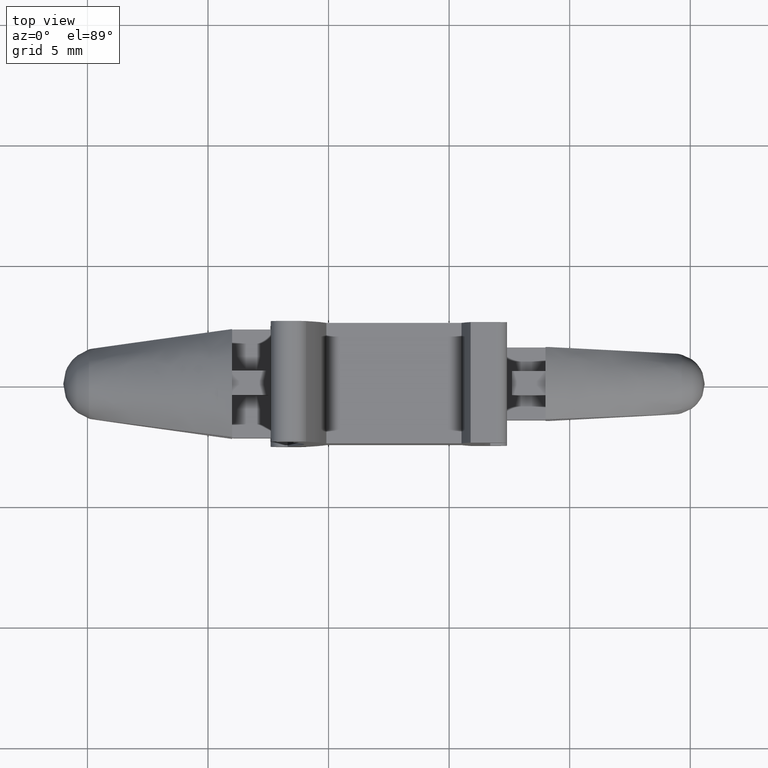
[diagram: clean part render]
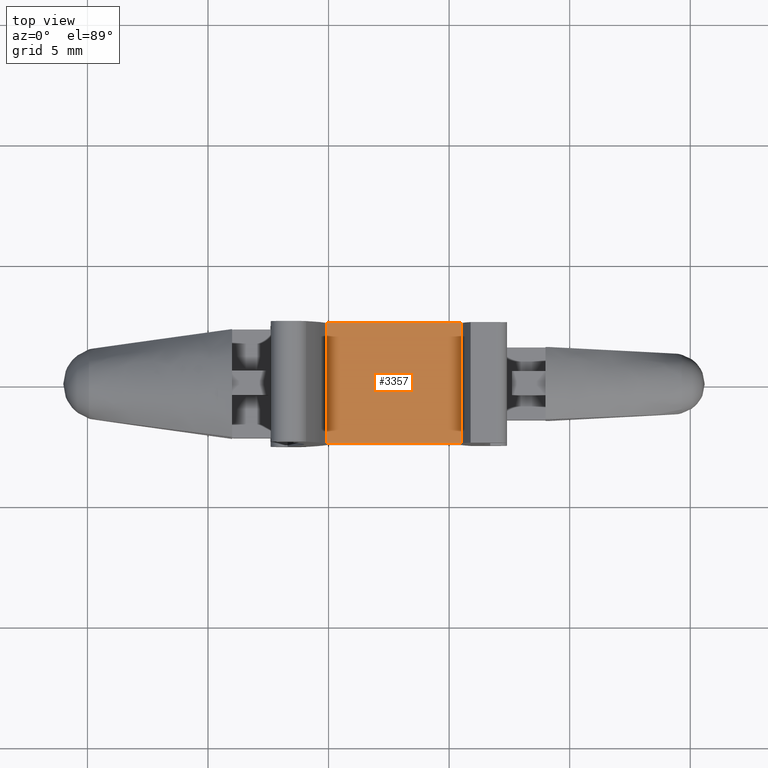
[diagram: same view with one face highlighted and labeled with its STEP entity id]
A machine part, top view. The second image highlights one B-rep face of the part: STEP entity #3357.
In plain terms, the highlighted face is a freeform B-spline surface patch.
Its self-contained STEP definition (entity closure, byte-faithful):
#2059=CARTESIAN_POINT('',(5.513546577129890,-2.499999999999945,2.0));
#2060=VERTEX_POINT('',#2059);
#2061=CARTESIAN_POINT('',(5.513546577129890,2.499999999999945,2.0));
#2062=VERTEX_POINT('',#2061);
#2063=CARTESIAN_POINT('',(5.513546577129890,-2.499999999999945,2.0));
#2064=CARTESIAN_POINT('',(5.513546577129890,2.499999999999945,2.0));
#2065=QUASI_UNIFORM_CURVE('',1,(#2063,#2064),.UNSPECIFIED.,.F.,.U.);
#2066=EDGE_CURVE('',#2060,#2062,#2065,.T.);
#3231=CARTESIAN_POINT('',(-0.091632126966619,2.500000000000060,2.0));
#3232=VERTEX_POINT('',#3231);
#3233=CARTESIAN_POINT('',(-0.091632126966619,-2.499999999999945,2.0));
#3234=VERTEX_POINT('',#3233);
#3235=CARTESIAN_POINT('',(-0.091632126966619,2.500000000000060,2.0));
#3236=CARTESIAN_POINT('',(-0.091632126966619,-2.499999999999945,2.0));
#3237=QUASI_UNIFORM_CURVE('',1,(#3235,#3236),.UNSPECIFIED.,.F.,.U.);
#3238=EDGE_CURVE('',#3232,#3234,#3237,.T.);
#3275=CARTESIAN_POINT('',(5.513546577129890,2.499999999999945,2.0));
#3276=CARTESIAN_POINT('',(-0.091632126966619,2.500000000000060,2.0));
#3277=QUASI_UNIFORM_CURVE('',1,(#3275,#3276),.UNSPECIFIED.,.F.,.U.);
#3278=EDGE_CURVE('',#2062,#3232,#3277,.T.);
#3333=CARTESIAN_POINT('',(5.513546577129890,-2.499999999999945,2.0));
#3334=CARTESIAN_POINT('',(-0.091632126966619,-2.499999999999945,2.0));
#3335=QUASI_UNIFORM_CURVE('',1,(#3333,#3334),.UNSPECIFIED.,.F.,.U.);
#3336=EDGE_CURVE('',#2060,#3234,#3335,.T.);
#3346=CARTESIAN_POINT('',(5.793525137300772,-2.749749990308975,2.0));
#3347=CARTESIAN_POINT('',(-0.371610937708516,-2.749749990308975,2.0));
#3348=CARTESIAN_POINT('',(5.793525137300772,2.749750124419540,2.0));
#3349=CARTESIAN_POINT('',(-0.371610937708516,2.749750124419540,2.0));
#3350=B_SPLINE_SURFACE_WITH_KNOTS('',1,1,((#3346,#3348),(#3347,#3349)),.UNSPECIFIED.,.F.,.F.,.U.,(2,2),(2,2),(0.0,6.165136075009288),(0.0,5.499500114728516),.UNSPECIFIED.);
#3351=ORIENTED_EDGE('',*,*,#3336,.F.);
#3352=ORIENTED_EDGE('',*,*,#2066,.T.);
#3353=ORIENTED_EDGE('',*,*,#3278,.T.);
#3354=ORIENTED_EDGE('',*,*,#3238,.T.);
#3355=EDGE_LOOP('',(#3351,#3352,#3353,#3354));
#3356=FACE_OUTER_BOUND('',#3355,.T.);
#3357=ADVANCED_FACE('',(#3356),#3350,.F.);